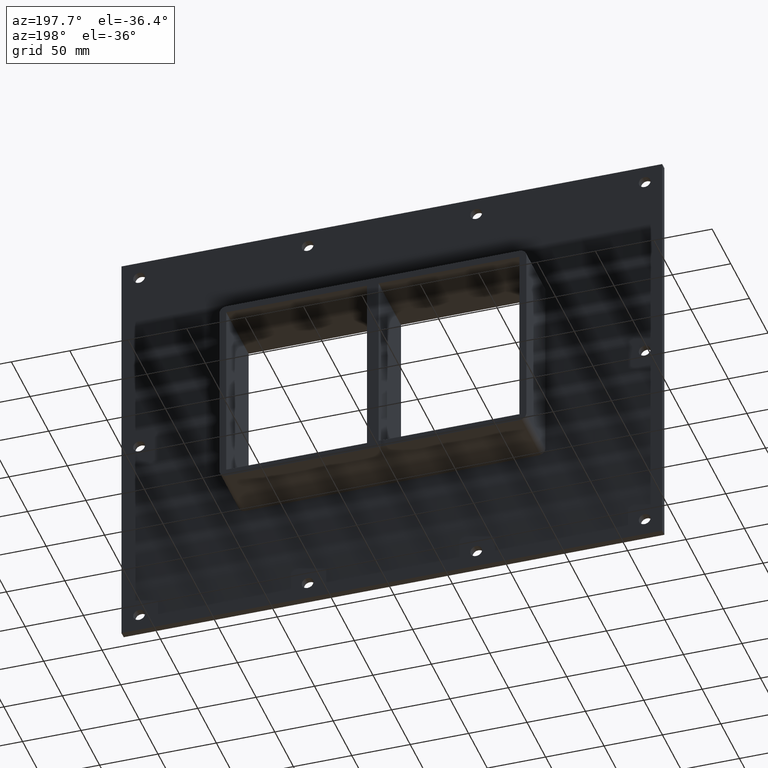
[diagram: clean part render]
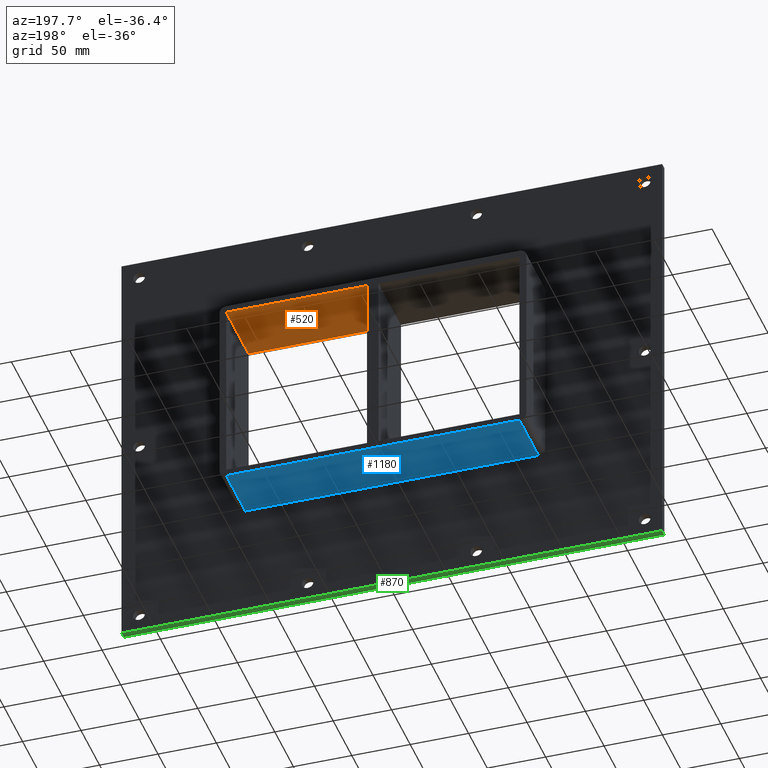
[diagram: same view with three faces highlighted in distinct colors, each labeled with its STEP entity id]
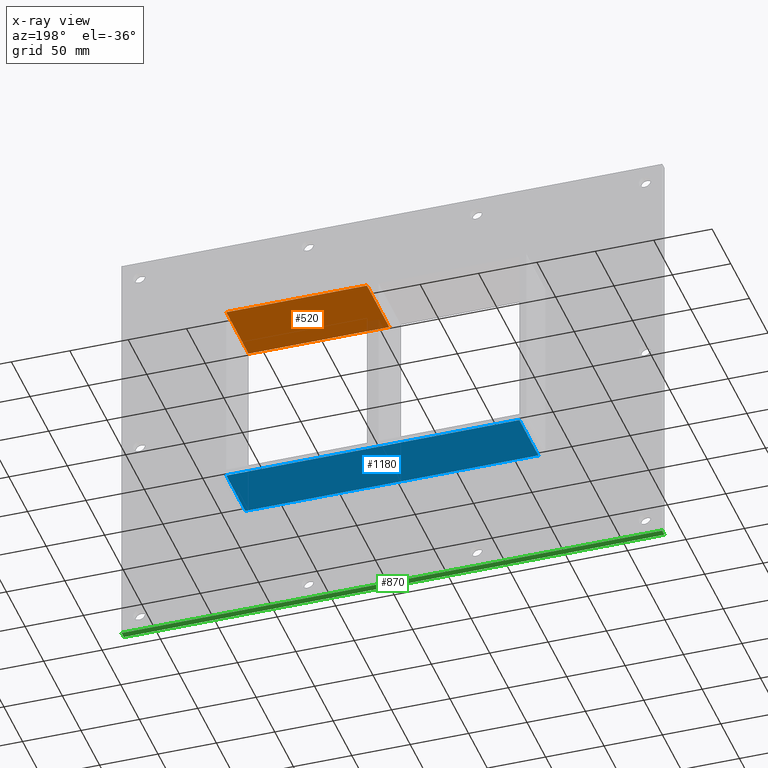
[diagram: x-ray of the same camera — body ghosted, the three highlighted faces saturated]
A machine part, auxiliary view with three faces highlighted in distinct colors.
The next image is the same camera in x-ray (body ghosted, the three faces saturated) — at least one of them is partly hidden behind the body in this view.
Their STEP definitions:

[orange] entity #520 — the highlighted planar face has unit normal (0, 0, 1).
#393=CARTESIAN_POINT('',(5.0,-3.0,79.750000000000014));
#394=VERTEX_POINT('',#393);
#411=CARTESIAN_POINT('',(5.0,57.0,79.750000000000014));
#412=VERTEX_POINT('',#411);
#419=CARTESIAN_POINT('',(5.0,-3.0,79.750000000000014));
#420=DIRECTION('',(0.0,1.0,0.0));
#421=VECTOR('',#420,60.000000000000007);
#422=LINE('',#419,#421);
#423=EDGE_CURVE('',#394,#412,#422,.T.);
#490=CARTESIAN_POINT('',(-125.49999999999999,0.0,79.750000000000014));
#491=DIRECTION('',(0.0,0.0,1.0));
#492=DIRECTION('',(1.0,0.0,0.0));
#493=AXIS2_PLACEMENT_3D('',#490,#491,#492);
#494=PLANE('',#493);
#495=ORIENTED_EDGE('',*,*,#423,.T.);
#496=CARTESIAN_POINT('',(125.5,57.0,79.750000000000014));
#497=VERTEX_POINT('',#496);
#498=CARTESIAN_POINT('',(125.50000000000001,57.0,79.750000000000014));
#499=DIRECTION('',(-1.0,0.0,0.0));
#500=VECTOR('',#499,120.50000000000001);
#501=LINE('',#498,#500);
#502=EDGE_CURVE('',#497,#412,#501,.T.);
#503=ORIENTED_EDGE('',*,*,#502,.F.);
#504=CARTESIAN_POINT('',(125.5,-3.0,79.750000000000014));
#505=VERTEX_POINT('',#504);
#506=CARTESIAN_POINT('',(125.5,-3.0,79.750000000000014));
#507=DIRECTION('',(0.0,1.0,0.0));
#508=VECTOR('',#507,60.0);
#509=LINE('',#506,#508);
#510=EDGE_CURVE('',#505,#497,#509,.T.);
#511=ORIENTED_EDGE('',*,*,#510,.F.);
#512=CARTESIAN_POINT('',(5.0,-3.0,79.750000000000014));
#513=DIRECTION('',(1.0,0.0,0.0));
#514=VECTOR('',#513,120.50000000000001);
#515=LINE('',#512,#514);
#516=EDGE_CURVE('',#394,#505,#515,.T.);
#517=ORIENTED_EDGE('',*,*,#516,.F.);
#518=EDGE_LOOP('',(#495,#503,#511,#517));
#519=FACE_OUTER_BOUND('',#518,.T.);
#520=ADVANCED_FACE('',(#519),#494,.F.);

[blue] entity #1180 — the highlighted planar face has unit normal (0, 0, -1).
#621=CARTESIAN_POINT('',(-125.5,6.000000000000001,-85.750000000000014));
#622=VERTEX_POINT('',#621);
#632=CARTESIAN_POINT('',(125.5,6.000000000000001,-85.750000000000014));
#633=VERTEX_POINT('',#632);
#634=CARTESIAN_POINT('',(125.50000000000001,6.000000000000001,-85.750000000000014));
#635=DIRECTION('',(-1.0,0.0,0.0));
#636=VECTOR('',#635,251.0);
#637=LINE('',#634,#636);
#638=EDGE_CURVE('',#633,#622,#637,.T.);
#1089=CARTESIAN_POINT('',(125.5,57.0,-85.750000000000014));
#1090=VERTEX_POINT('',#1089);
#1091=CARTESIAN_POINT('',(125.5,6.000000000000001,-85.750000000000014));
#1092=DIRECTION('',(0.0,1.0,0.0));
#1093=VECTOR('',#1092,51.0);
#1094=LINE('',#1091,#1093);
#1095=EDGE_CURVE('',#633,#1090,#1094,.T.);
#1157=CARTESIAN_POINT('',(131.50000000000003,0.0,-85.750000000000014));
#1158=DIRECTION('',(0.0,0.0,-1.0));
#1159=DIRECTION('',(-1.0,0.0,0.0));
#1160=AXIS2_PLACEMENT_3D('',#1157,#1158,#1159);
#1161=PLANE('',#1160);
#1162=ORIENTED_EDGE('',*,*,#638,.T.);
#1163=CARTESIAN_POINT('',(-125.5,57.0,-85.750000000000014));
#1164=VERTEX_POINT('',#1163);
#1165=CARTESIAN_POINT('',(-125.5,57.0,-85.750000000000014));
#1166=DIRECTION('',(0.0,-1.0,0.0));
#1167=VECTOR('',#1166,51.0);
#1168=LINE('',#1165,#1167);
#1169=EDGE_CURVE('',#1164,#622,#1168,.T.);
#1170=ORIENTED_EDGE('',*,*,#1169,.F.);
#1171=CARTESIAN_POINT('',(125.50000000000001,57.0,-85.750000000000014));
#1172=DIRECTION('',(-1.0,0.0,0.0));
#1173=VECTOR('',#1172,251.0);
#1174=LINE('',#1171,#1173);
#1175=EDGE_CURVE('',#1090,#1164,#1174,.T.);
#1176=ORIENTED_EDGE('',*,*,#1175,.F.);
#1177=ORIENTED_EDGE('',*,*,#1095,.F.);
#1178=EDGE_LOOP('',(#1162,#1170,#1176,#1177));
#1179=FACE_OUTER_BOUND('',#1178,.T.);
#1180=ADVANCED_FACE('',(#1179),#1161,.T.);

[green] entity #870 — the highlighted planar face has unit normal (0, 0, -1).
#567=CARTESIAN_POINT('',(231.5,6.000000000000001,-185.75000000000003));
#568=VERTEX_POINT('',#567);
#575=CARTESIAN_POINT('',(-231.50000000000006,6.000000000000001,-185.75000000000003));
#576=VERTEX_POINT('',#575);
#577=CARTESIAN_POINT('',(231.5,6.000000000000001,-185.75));
#578=DIRECTION('',(-1.0,0.0,0.0));
#579=VECTOR('',#578,463.00000000000006);
#580=LINE('',#577,#579);
#581=EDGE_CURVE('',#568,#576,#580,.T.);
#707=CARTESIAN_POINT('',(-231.50000000000006,0.0,-185.75));
#708=VERTEX_POINT('',#707);
#715=CARTESIAN_POINT('',(231.5,0.0,-185.75));
#716=VERTEX_POINT('',#715);
#717=CARTESIAN_POINT('',(231.5,0.0,-185.75));
#718=DIRECTION('',(-1.0,0.0,0.0));
#719=VECTOR('',#718,463.00000000000006);
#720=LINE('',#717,#719);
#721=EDGE_CURVE('',#716,#708,#720,.T.);
#845=CARTESIAN_POINT('',(-231.50000000000006,0.0,-185.75));
#846=DIRECTION('',(0.0,1.0,0.0));
#847=VECTOR('',#846,6.000000000000001);
#848=LINE('',#845,#847);
#849=EDGE_CURVE('',#708,#576,#848,.T.);
#854=CARTESIAN_POINT('',(231.5,0.0,-185.75));
#855=DIRECTION('',(0.0,0.0,-1.0));
#856=DIRECTION('',(-1.0,0.0,0.0));
#857=AXIS2_PLACEMENT_3D('',#854,#855,#856);
#858=PLANE('',#857);
#859=ORIENTED_EDGE('',*,*,#721,.T.);
#860=ORIENTED_EDGE('',*,*,#849,.T.);
#861=ORIENTED_EDGE('',*,*,#581,.F.);
#862=CARTESIAN_POINT('',(231.5,0.0,-185.75));
#863=DIRECTION('',(0.0,1.0,0.0));
#864=VECTOR('',#863,6.000000000000001);
#865=LINE('',#862,#864);
#866=EDGE_CURVE('',#716,#568,#865,.T.);
#867=ORIENTED_EDGE('',*,*,#866,.F.);
#868=EDGE_LOOP('',(#859,#860,#861,#867));
#869=FACE_OUTER_BOUND('',#868,.T.);
#870=ADVANCED_FACE('',(#869),#858,.T.);